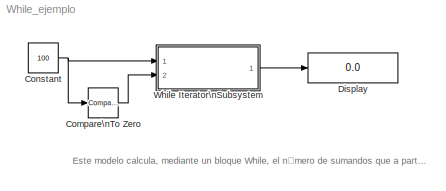
MODEL While_ejemplo
KIND model
BLOCK [Reference] Compare\nTo Zero  REF=simulink/Logic and Bit\nOperations/Compare\nTo Zero
  FunctionWithSeparateData = off
  LogicOutDataTypeMode = uint8
  Ports = [1, 1]
  RTWMemSecDataConstants = Inherit from model
  RTWMemSecDataInternal = Inherit from model
  RTWMemSecDataParameters = Inherit from model
  RTWMemSecFuncExecute = Inherit from model
  RTWMemSecFuncInitTerm = Inherit from model
  ShowPortLabels = FromPortIcon
  SourceBlock = simulink/Logic and Bit\nOperations/Compare\nTo Zero
  SourceType = Compare To Zero
  SystemSampleTime = -1
  ZeroCross = off
  relop = >
BLOCK [Constant] Constant
  OutDataType = sfix(16)
  OutScaling = 2^0
  Value = 100
BLOCK [Display] Display
  Decimation = 1
  Lockdown = off
  Ports = [1]
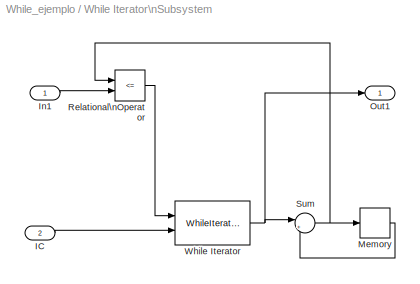
BLOCK [SubSystem] While Iterator\nSubsystem
  FunctionWithSeparateData = off
  MaskHideContents = off
  MinAlgLoopOccurrences = off
  Opaque = off
  Ports = [2, 1]
  PropExecContextOutsideSubsystem = off
  RTWSystemCode = Auto
  RequestExecContextInheritance = off
  TreatAsAtomicUnit = on
BLOCK [Inport] While Iterator\nSubsystem/IC
  IconDisplay = Port number
  OutDataType = sfix(16)
  OutScaling = 2^0
  Port = 2
BLOCK [Inport] While Iterator\nSubsystem/In1
  IconDisplay = Port number
  OutDataType = sfix(16)
  OutScaling = 2^0
BLOCK [Memory] While Iterator\nSubsystem/Memory
  InheritSampleTime = on
BLOCK [Outport] While Iterator\nSubsystem/Out1
  IconDisplay = Port number
  OutDataType = sfix(16)
  OutScaling = 2^0
BLOCK [RelationalOperator] While Iterator\nSubsystem/Relational\nOperator
  InputSameDT = off
  LogicOutDataTypeMode = boolean
  Operator = <=
  OutDataTypeStr = boolean
BLOCK [Sum] While Iterator\nSubsystem/Sum
  IconShape = round
  InputSameDT = off
  Inputs = |++
  OutDataType = sfix(16)
  OutDataTypeMode = Inherit via internal rule
  OutDataTypeStr = Inherit: Inherit via internal rule
  OutScaling = 2^0
  Ports = [2, 1]
  SaturateOnIntegerOverflow = off
BLOCK [WhileIterator] While Iterator\nSubsystem/While Iterator
  MaxIters = 20
  Ports = [2, 1]
  ResetStates = reset
  ShowIterationPort = on
ANNOTATION (root): Este modelo calcula, mediante un bloque While, el número de sumandos que a partir del 1 y de forma consecutiva, suman
LINE Compare\nTo Zero:1 -> While Iterator\nSubsystem:2
NET Constant:1 -> Compare\nTo Zero:1, While Iterator\nSubsystem:1
LINE While Iterator\nSubsystem/IC:1 -> While Iterator\nSubsystem/While Iterator:2
LINE While Iterator\nSubsystem/In1:1 -> While Iterator\nSubsystem/Relational\nOperator:2
LINE While Iterator\nSubsystem/Memory:1 -> While Iterator\nSubsystem/Sum:2
LINE While Iterator\nSubsystem/Relational\nOperator:1 -> While Iterator\nSubsystem/While Iterator:1
NET While Iterator\nSubsystem/Sum:1 -> While Iterator\nSubsystem/Memory:1, While Iterator\nSubsystem/Relational\nOperator:1
NET While Iterator\nSubsystem/While Iterator:1 -> While Iterator\nSubsystem/Out1:1, While Iterator\nSubsystem/Sum:1
LINE While Iterator\nSubsystem:1 -> Display:1
note: NET lines group one-source signal fan-out (src -> all destinations, sorted); 1:1 wires keep LINE
